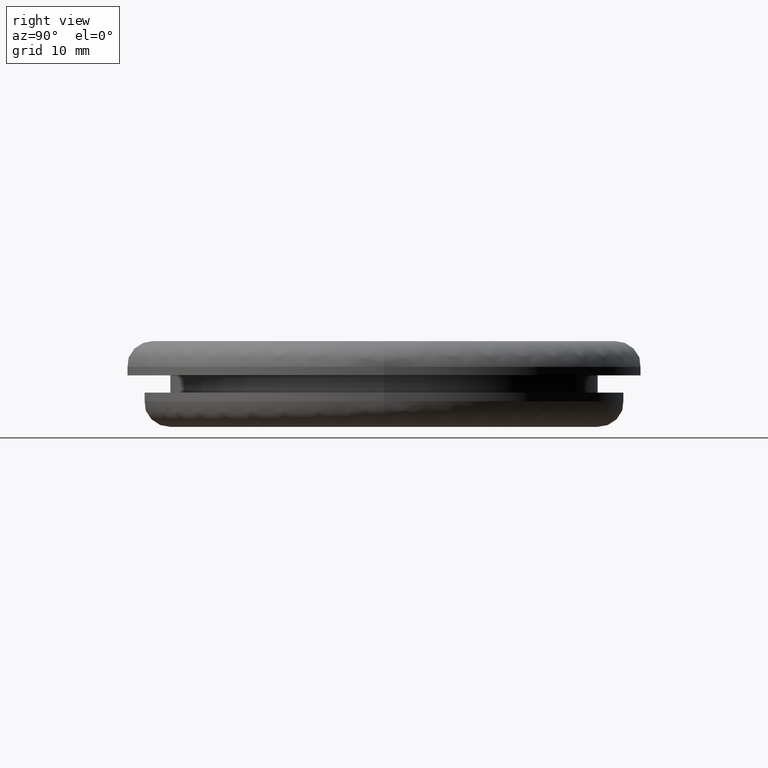
[diagram: clean part render]
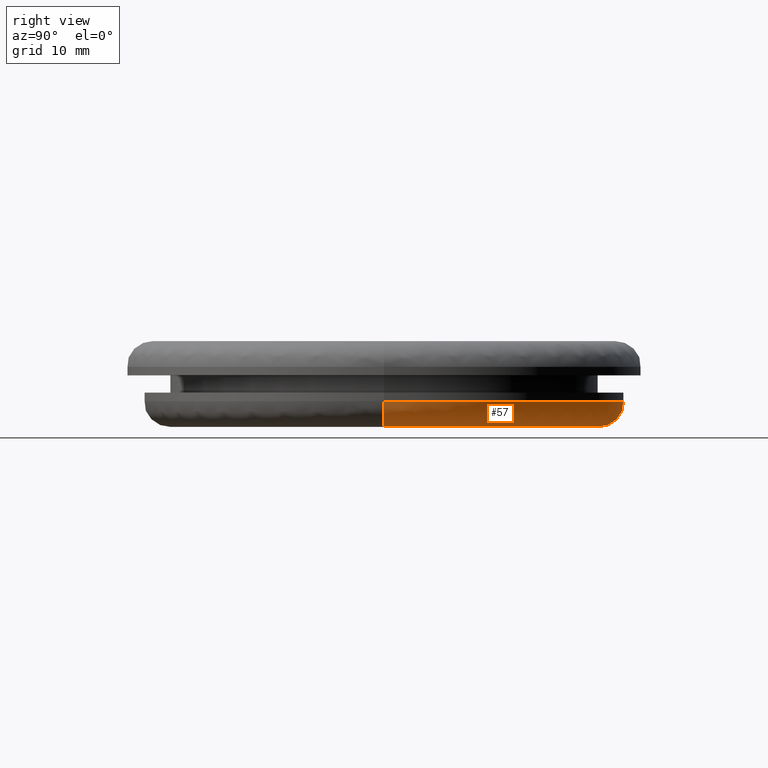
[diagram: same view with one face highlighted and labeled with its STEP entity id]
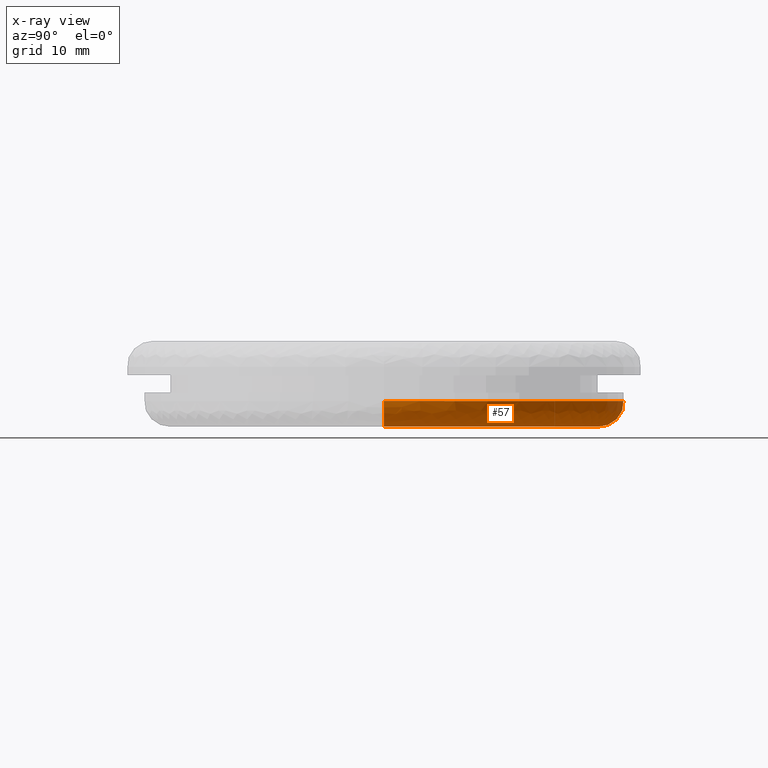
[diagram: x-ray of the same camera — body ghosted, the highlighted face saturated]
A machine part, right view. The second image highlights one B-rep face of the part: STEP entity #57.
The next image is the same camera in x-ray: the body ghosted, the highlighted face saturated — about 0% of this face is hidden behind the body in this view.
In plain terms, the highlighted face is a freeform B-spline surface patch.
Its self-contained STEP definition (entity closure, byte-faithful):
#57=ADVANCED_FACE('',(#235),#234,.T.);
#234=( BOUNDED_SURFACE() B_SPLINE_SURFACE( 2,2,((#416,#417,#418,#419,#420),(#421,#422,#423,#424,#425),(#426,#427,#428,#429,#430),(#431,#432,#433,#434,#435),(#436,#437,#438,#439,#440)), .UNSPECIFIED.,.F.,.F.,.F.) B_SPLINE_SURFACE_WITH_KNOTS((3,2,3),(3,2,3),(0.00000000000E+00,5.00000000000E-01,1.00000000000E+00),(0.00000000000E+00,5.00000000000E-01,1.00000000000E+00), .UNSPECIFIED. ) GEOMETRIC_REPRESENTATION_ITEM() RATIONAL_B_SPLINE_SURFACE(((1.00000000000E+00,7.07106781187E-01,1.00000000000E+00,7.07106781187E-01,1.00000000000E+00),(7.07106781187E-01,5.00000000000E-01,7.07106781187E-01,5.00000000000E-01,7.07106781187E-01),(1.00000000000E+00,7.07106781187E-01,1.00000000000E+00,7.07106781187E-01,1.00000000000E+00),(7.07106781187E-01,5.00000000000E-01,7.07106781187E-01,5.00000000000E-01,7.07106781187E-01),(1.00000000000E+00,7.07106781187E-01,1.00000000000E+00,7.07106781187E-01,1.00000000000E+00))) REPRESENTATION_ITEM('') SURFACE() );
#235=FACE_OUTER_BOUND('',#441,.T.);
#416=CARTESIAN_POINT('',(-2.80000000000E+01,-1.13246909933E-19,-7.00000000000E+00));
#417=CARTESIAN_POINT('',(-2.80000000000E+01,-1.13246909933E-19,-1.00000000000E+01));
#418=CARTESIAN_POINT('',(-2.50000000000E+01,-1.01113312440E-19,-1.00000000000E+01));
#419=CARTESIAN_POINT('',(-2.20000000000E+01,-8.89797149471E-20,-1.00000000000E+01));
#420=CARTESIAN_POINT('',(-2.20000000000E+01,-8.89797149471E-20,-7.00000000000E+00));
#421=CARTESIAN_POINT('',(-2.80000000000E+01,2.80000000000E+01,-7.00000000000E+00));
#422=CARTESIAN_POINT('',(-2.80000000000E+01,2.80000000000E+01,-1.00000000000E+01));
#423=CARTESIAN_POINT('',(-2.50000000000E+01,2.50000000000E+01,-1.00000000000E+01));
#424=CARTESIAN_POINT('',(-2.20000000000E+01,2.20000000000E+01,-1.00000000000E+01));
#425=CARTESIAN_POINT('',(-2.20000000000E+01,2.20000000000E+01,-7.00000000000E+00));
#426=CARTESIAN_POINT('',(-1.19520437024E-12,2.80000000000E+01,-7.00000000000E+00));
#427=CARTESIAN_POINT('',(-1.19520437024E-12,2.80000000000E+01,-1.00000000000E+01));
#428=CARTESIAN_POINT('',(-1.19502066108E-12,2.50000000000E+01,-1.00000000000E+01));
#429=CARTESIAN_POINT('',(-1.19483695193E-12,2.20000000000E+01,-1.00000000000E+01));
#430=CARTESIAN_POINT('',(-1.19483695193E-12,2.20000000000E+01,-7.00000000000E+00));
#431=CARTESIAN_POINT('',(2.80000000000E+01,2.80000000000E+01,-7.00000000000E+00));
#432=CARTESIAN_POINT('',(2.80000000000E+01,2.80000000000E+01,-1.00000000000E+01));
#433=CARTESIAN_POINT('',(2.50000000000E+01,2.50000000000E+01,-1.00000000000E+01));
#434=CARTESIAN_POINT('',(2.20000000000E+01,2.20000000000E+01,-1.00000000000E+01));
#435=CARTESIAN_POINT('',(2.20000000000E+01,2.20000000000E+01,-7.00000000000E+00));
#436=CARTESIAN_POINT('',(2.80000000000E+01,3.42912428452E-15,-7.00000000000E+00));
#437=CARTESIAN_POINT('',(2.80000000000E+01,3.42912428452E-15,-1.00000000000E+01));
#438=CARTESIAN_POINT('',(2.50000000000E+01,3.06171811118E-15,-1.00000000000E+01));
#439=CARTESIAN_POINT('',(2.20000000000E+01,2.69431193784E-15,-1.00000000000E+01));
#440=CARTESIAN_POINT('',(2.20000000000E+01,2.69431193784E-15,-7.00000000000E+00));
#441=EDGE_LOOP('',(#516,#517,#518,#519));
#516=ORIENTED_EDGE('',*,*,#559,.T.);
#517=ORIENTED_EDGE('',*,*,#562,.T.);
#518=ORIENTED_EDGE('',*,*,#544,.F.);
#519=ORIENTED_EDGE('',*,*,#563,.F.);
#544=EDGE_CURVE('',#678,#679,#680,.T.);
#559=EDGE_CURVE('',#775,#768,#776,.T.);
#562=EDGE_CURVE('',#768,#679,#794,.T.);
#563=EDGE_CURVE('',#775,#678,#800,.T.);
#678=VERTEX_POINT('',#898);
#679=VERTEX_POINT('',#899);
#680=CIRCLE('',#903,2.50000000000E+01);
#768=VERTEX_POINT('',#948);
#775=VERTEX_POINT('',#951);
#776=CIRCLE('',#955,2.80000000000E+01);
#794=(BOUNDED_CURVE() B_SPLINE_CURVE(2,(#962,#963,#964),.UNSPECIFIED.,.F.,.F.) B_SPLINE_CURVE_WITH_KNOTS((3,3),(0.00000000000E+00,5.00000000000E-01),.UNSPECIFIED.) CURVE() GEOMETRIC_REPRESENTATION_ITEM() RATIONAL_B_SPLINE_CURVE((1.00000000000E+00,7.07106781187E-01,1.00000000000E+00)) REPRESENTATION_ITEM('') );
#800=(BOUNDED_CURVE() B_SPLINE_CURVE(3,(#965,#966,#967,#968,#969),.UNSPECIFIED.,.F.,.F.) B_SPLINE_CURVE_WITH_KNOTS((4,1,4),(0.00000000000E+00,2.50000001641E-01,5.00000002850E-01),.UNSPECIFIED.) CURVE() GEOMETRIC_REPRESENTATION_ITEM() RATIONAL_B_SPLINE_CURVE((1.00000000000E+00,1.00000000000E+00,1.00000000000E+00,1.00000000000E+00,1.00000000000E+00)) REPRESENTATION_ITEM('') );
#898=CARTESIAN_POINT('',(-2.50000000000E+01,0.00000000000E+00,-1.00000000000E+01));
#899=CARTESIAN_POINT('',(2.50000000000E+01,-1.18423789293E-15,-1.00000000000E+01));
#900=CARTESIAN_POINT('',(-1.19371179608E-12,0.00000000000E+00,-1.00000000000E+01));
#901=DIRECTION('',(-0.00000000000E+00,0.00000000000E+00,-1.00000000000E+00));
#902=DIRECTION('',(-1.00000000000E+00,-1.22460635382E-16,0.00000000000E+00));
#903=AXIS2_PLACEMENT_3D('',#900,#901,#902);
#948=CARTESIAN_POINT('',(2.80000000000E+01,1.18423789293E-15,-7.00000000000E+00));
#951=CARTESIAN_POINT('',(-2.80000000000E+01,0.00000000000E+00,-7.00000000000E+00));
#952=CARTESIAN_POINT('',(-1.19371179608E-12,0.00000000000E+00,-7.00000000000E+00));
#953=DIRECTION('',(-0.00000000000E+00,0.00000000000E+00,-1.00000000000E+00));
#954=DIRECTION('',(-1.00000000000E+00,-1.22460635382E-16,0.00000000000E+00));
#955=AXIS2_PLACEMENT_3D('',#952,#953,#954);
#962=CARTESIAN_POINT('',(2.80000000000E+01,-3.42889779070E-15,-7.00000000000E+00));
#963=CARTESIAN_POINT('',(2.80000000000E+01,-3.42889779070E-15,-1.00000000000E+01));
#964=CARTESIAN_POINT('',(2.50000000000E+01,-3.06151588456E-15,-1.00000000000E+01));
#965=CARTESIAN_POINT('',(-2.80000000000E+01,2.36847578587E-15,-7.00000000000E+00));
#966=CARTESIAN_POINT('',(-2.80066721779E+01,2.62255899324E-15,-7.77835132384E+00));
#967=CARTESIAN_POINT('',(-2.73501289309E+01,3.18102515021E-15,-9.35012895124E+00));
#968=CARTESIAN_POINT('',(-2.57783512983E+01,3.50217965951E-15,-1.00066721841E+01));
#969=CARTESIAN_POINT('',(-2.49999999758E+01,3.55271368391E-15,-1.00000000000E+01));